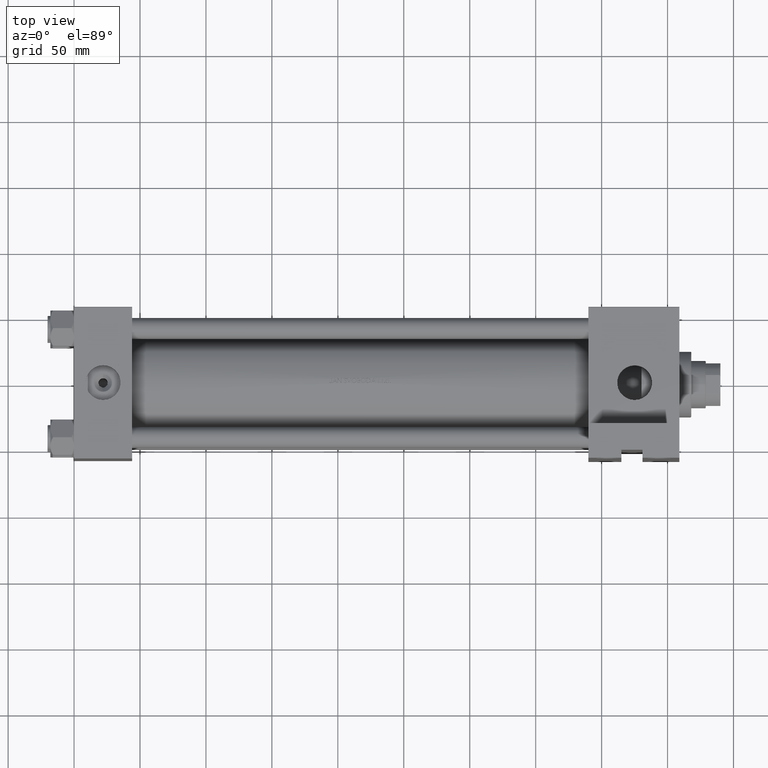
[diagram: clean part render]
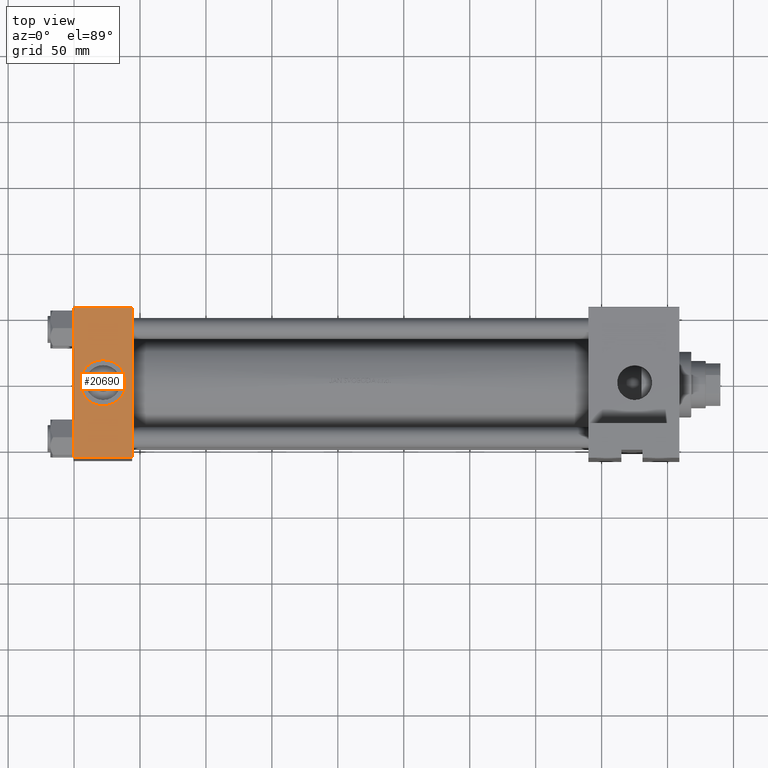
[diagram: same view with one face highlighted and labeled with its STEP entity id]
A machine part, top view. The second image highlights one B-rep face of the part: STEP entity #20690.
In plain terms, the highlighted planar face has unit normal (0, 0, -1).
Its self-contained STEP definition (entity closure, byte-faithful):
#883 = EDGE_LOOP ( 'NONE', ( #26321, #5633, #33538, #40343 ) ) ;
#1842 = CARTESIAN_POINT ( 'NONE',  ( 44.00000000000000000, -57.50000000000000711, 57.00000000000000711 ) ) ;
#3044 = EDGE_CURVE ( 'NONE', #31507, #30970, #46428, .T. ) ;
#3103 = VECTOR ( 'NONE', #10187, 1000.000000000000000 ) ;
#4495 = CIRCLE ( 'NONE', #45644, 17.50000000000000000 ) ;
#5528 = CARTESIAN_POINT ( 'NONE',  ( 44.00000000000000000, -57.50000000000000711, 57.00000000000000711 ) ) ;
#5633 = ORIENTED_EDGE ( 'NONE', *, *, #3044, .T. ) ;
#5735 = DIRECTION ( 'NONE',  ( -0.000000000000000000, 1.000000000000000000, 0.000000000000000000 ) ) ;
#6470 = FACE_OUTER_BOUND ( 'NONE', #883, .T. ) ;
#6648 = CARTESIAN_POINT ( 'NONE',  ( 22.00000000000000000, -57.50000000000000711, -17.50000000000000000 ) ) ;
#7160 = DIRECTION ( 'NONE',  ( 0.000000000000000000, -1.000000000000000000, -8.673617379884036705E-17 ) ) ;
#7427 = VERTEX_POINT ( 'NONE', #21564 ) ;
#8646 = DIRECTION ( 'NONE',  ( 0.000000000000000000, 0.000000000000000000, -1.000000000000000000 ) ) ;
#8736 = CARTESIAN_POINT ( 'NONE',  ( 44.00000000000000000, -57.50000000000000711, 57.49999999999999289 ) ) ;
#10187 = DIRECTION ( 'NONE',  ( 1.000000000000000000, 0.000000000000000000, 0.000000000000000000 ) ) ;
#11599 = AXIS2_PLACEMENT_3D ( 'NONE', #14780, #36672, #18902 ) ;
#11672 = LINE ( 'NONE', #8736, #45342 ) ;
#11814 = VERTEX_POINT ( 'NONE', #1842 ) ;
#12081 = ORIENTED_EDGE ( 'NONE', *, *, #22800, .F. ) ;
#12368 = EDGE_CURVE ( 'NONE', #11814, #30970, #11672, .T. ) ;
#13820 = CARTESIAN_POINT ( 'NONE',  ( 44.00000000000000000, -57.50000000000000711, -57.00000000000000711 ) ) ;
#13927 = CIRCLE ( 'NONE', #11599, 17.50000000000000000 ) ;
#14061 = CARTESIAN_POINT ( 'NONE',  ( 44.00000000000000000, -57.50000000000000711, -57.00000000000000711 ) ) ;
#14780 = CARTESIAN_POINT ( 'NONE',  ( 22.00000000000000000, -57.50000000000000711, 0.000000000000000000 ) ) ;
#15481 = VECTOR ( 'NONE', #42755, 1000.000000000000000 ) ;
#16922 = DIRECTION ( 'NONE',  ( 0.000000000000000000, -0.000000000000000000, 1.000000000000000000 ) ) ;
#17666 = EDGE_CURVE ( 'NONE', #7427, #31507, #24209, .T. ) ;
#18902 = DIRECTION ( 'NONE',  ( 0.000000000000000000, 0.000000000000000000, -1.000000000000000000 ) ) ;
#20690 = ADVANCED_FACE ( 'NONE', ( #28830, #6470 ), #42726, .F. ) ;
#21564 = CARTESIAN_POINT ( 'NONE',  ( 0.000000000000000000, -57.50000000000000711, 57.00000000000000711 ) ) ;
#22765 = EDGE_LOOP ( 'NONE', ( #12081, #24264 ) ) ;
#22800 = EDGE_CURVE ( 'NONE', #31070, #34219, #4495, .T. ) ;
#24209 = LINE ( 'NONE', #41717, #26865 ) ;
#24264 = ORIENTED_EDGE ( 'NONE', *, *, #26380, .F. ) ;
#24475 = CARTESIAN_POINT ( 'NONE',  ( 44.00000000000000000, -57.50000000000000711, 57.49999999999999289 ) ) ;
#25633 = CARTESIAN_POINT ( 'NONE',  ( 22.00000000000000000, -57.50000000000000711, 0.000000000000000000 ) ) ;
#26321 = ORIENTED_EDGE ( 'NONE', *, *, #17666, .T. ) ;
#26380 = EDGE_CURVE ( 'NONE', #34219, #31070, #13927, .T. ) ;
#26865 = VECTOR ( 'NONE', #8646, 1000.000000000000000 ) ;
#28830 = FACE_BOUND ( 'NONE', #22765, .T. ) ;
#29563 = EDGE_CURVE ( 'NONE', #11814, #7427, #38852, .T. ) ;
#30970 = VERTEX_POINT ( 'NONE', #14061 ) ;
#31070 = VERTEX_POINT ( 'NONE', #6648 ) ;
#31507 = VERTEX_POINT ( 'NONE', #43277 ) ;
#33538 = ORIENTED_EDGE ( 'NONE', *, *, #12368, .F. ) ;
#34219 = VERTEX_POINT ( 'NONE', #44648 ) ;
#36672 = DIRECTION ( 'NONE',  ( 0.000000000000000000, -1.000000000000000000, -8.673617379884036705E-17 ) ) ;
#36825 = DIRECTION ( 'NONE',  ( 0.000000000000000000, 0.000000000000000000, -1.000000000000000000 ) ) ;
#37869 = AXIS2_PLACEMENT_3D ( 'NONE', #24475, #5735, #16922 ) ;
#38852 = LINE ( 'NONE', #5528, #15481 ) ;
#40343 = ORIENTED_EDGE ( 'NONE', *, *, #29563, .T. ) ;
#41717 = CARTESIAN_POINT ( 'NONE',  ( 0.000000000000000000, -57.50000000000000711, 57.49999999999999289 ) ) ;
#42726 = PLANE ( 'NONE',  #37869 ) ;
#42755 = DIRECTION ( 'NONE',  ( -1.000000000000000000, 0.000000000000000000, 0.000000000000000000 ) ) ;
#43277 = CARTESIAN_POINT ( 'NONE',  ( 0.000000000000000000, -57.50000000000000711, -57.00000000000000711 ) ) ;
#44648 = CARTESIAN_POINT ( 'NONE',  ( 22.00000000000000355, -57.50000000000000711, 17.50000000000000000 ) ) ;
#45229 = DIRECTION ( 'NONE',  ( 0.000000000000000000, 0.000000000000000000, -1.000000000000000000 ) ) ;
#45342 = VECTOR ( 'NONE', #45229, 1000.000000000000000 ) ;
#45644 = AXIS2_PLACEMENT_3D ( 'NONE', #25633, #7160, #36825 ) ;
#46428 = LINE ( 'NONE', #13820, #3103 ) ;